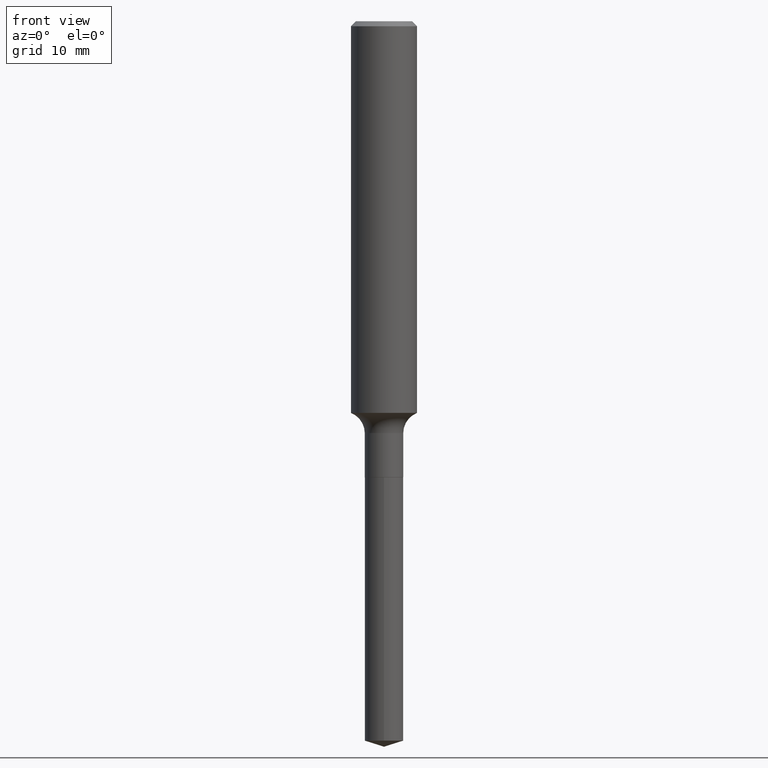
[diagram: clean part render]
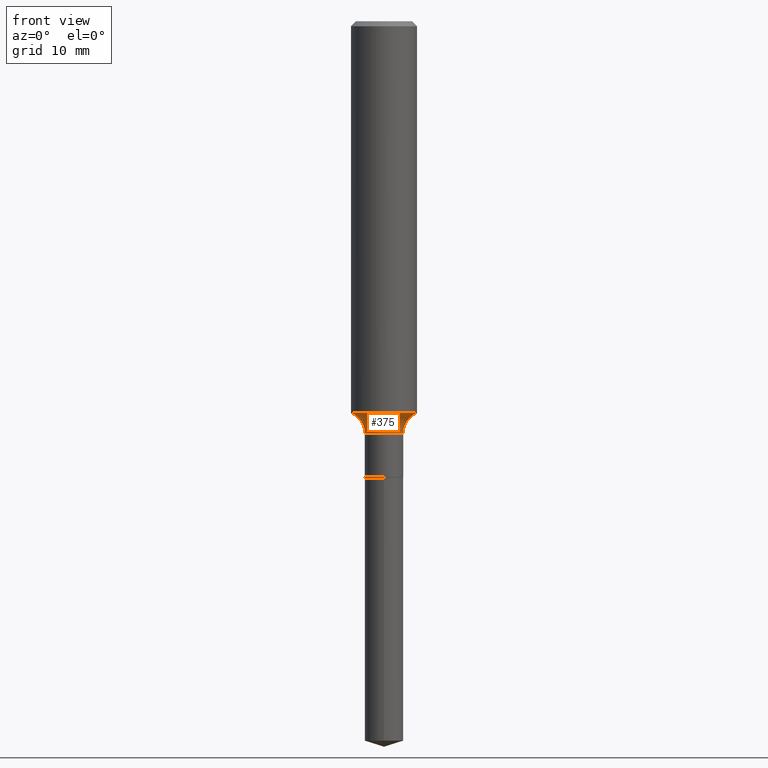
[diagram: same view with one face highlighted and labeled with its STEP entity id]
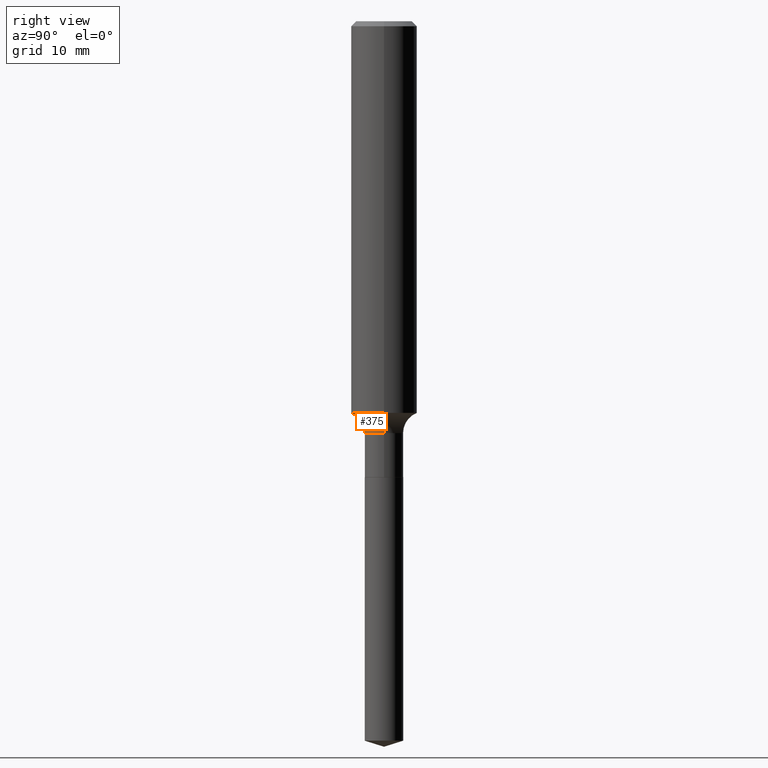
[diagram: same view with one face highlighted and labeled with its STEP entity id]
A machine part, front view. The second image highlights one B-rep face of the part: STEP entity #375.
A second angle (right view) of the same face is appended — the face is thin or edge-on in the first view.
In plain terms, the highlighted toroidal blend (fillet) surface has major radius 3.7313 mm and minor (blend) radius 1.9812 mm.
Its self-contained STEP definition (entity closure, byte-faithful):
#2 = EDGE_CURVE ( 'NONE', #52, #279, #387, .T. ) ;
#7 = ORIENTED_EDGE ( 'NONE', *, *, #2, .F. ) ;
#37 = FACE_OUTER_BOUND ( 'NONE', #129, .T. ) ;
#52 = VERTEX_POINT ( 'NONE', #269 ) ;
#101 = CARTESIAN_POINT ( 'NONE',  ( -0.1468999999999999750, -4.107195140363705355E-15, -1.475300000000000056 ) ) ;
#105 = EDGE_CURVE ( 'NONE', #397, #279, #241, .T. ) ;
#129 = EDGE_LOOP ( 'NONE', ( #196, #276, #244, #7 ) ) ;
#144 = AXIS2_PLACEMENT_3D ( 'NONE', #155, #271, #429 ) ;
#155 = CARTESIAN_POINT ( 'NONE',  ( 0.1468999999999999750, -6.176779636547406107E-15, -1.475300000000000056 ) ) ;
#158 = DIRECTION ( 'NONE',  ( 1.000000000000000000, -6.982962677686267499E-15, 0.000000000000000000 ) ) ;
#160 = VERTEX_POINT ( 'NONE', #401 ) ;
#173 = CIRCLE ( 'NONE', #388, 0.07800000000000006928 ) ;
#174 = DIRECTION ( 'NONE',  ( -2.445468806185136597E-29, 3.491481338843145583E-15, 1.000000000000000000 ) ) ;
#196 = ORIENTED_EDGE ( 'NONE', *, *, #370, .F. ) ;
#218 = CARTESIAN_POINT ( 'NONE',  ( 3.430532145968479544E-29, -4.897890719217663237E-15, -1.402811656109412830 ) ) ;
#223 = EDGE_CURVE ( 'NONE', #160, #397, #173, .T. ) ;
#241 = CIRCLE ( 'NONE', #249, 0.06889999999999998903 ) ;
#244 = ORIENTED_EDGE ( 'NONE', *, *, #105, .T. ) ;
#245 = DIRECTION ( 'NONE',  ( 7.105427357601001859E-15, 1.000000000000000000, -3.491481338843145583E-15 ) ) ;
#249 = AXIS2_PLACEMENT_3D ( 'NONE', #350, #380, #158 ) ;
#259 = DIRECTION ( 'NONE',  ( -2.445468806185136597E-29, 3.491481338843145583E-15, 1.000000000000000000 ) ) ;
#265 = CIRCLE ( 'NONE', #327, 0.1181000000000001632 ) ;
#269 = CARTESIAN_POINT ( 'NONE',  ( 0.1181000000000002603, -5.722578611452413077E-15, -1.402811656109412830 ) ) ;
#271 = DIRECTION ( 'NONE',  ( -6.982962677686266711E-15, -1.000000000000000000, 3.491481338843145583E-15 ) ) ;
#276 = ORIENTED_EDGE ( 'NONE', *, *, #223, .T. ) ;
#279 = VERTEX_POINT ( 'NONE', #366 ) ;
#305 = AXIS2_PLACEMENT_3D ( 'NONE', #404, #174, #328 ) ;
#316 = DIRECTION ( 'NONE',  ( -1.000000000000000000, 7.105427357601005014E-15, 0.000000000000000000 ) ) ;
#327 = AXIS2_PLACEMENT_3D ( 'NONE', #218, #259, #448 ) ;
#328 = DIRECTION ( 'NONE',  ( 1.000000000000000000, -6.982962677686268288E-15, 4.883557194083113462E-29 ) ) ;
#350 = CARTESIAN_POINT ( 'NONE',  ( 3.607800129764931825E-29, -5.150982419195292745E-15, -1.475300000000000056 ) ) ;
#358 = TOROIDAL_SURFACE ( 'NONE', #305, 0.1468999999999999750, 0.07800000000000006928 ) ;
#366 = CARTESIAN_POINT ( 'NONE',  ( 0.06889999999999998903, -5.632108547687876483E-15, -1.475300000000000056 ) ) ;
#370 = EDGE_CURVE ( 'NONE', #160, #52, #265, .T. ) ;
#375 = ADVANCED_FACE ( 'NONE', ( #37 ), #358, .F. ) ;
#380 = DIRECTION ( 'NONE',  ( -2.445468806185136597E-29, 3.491481338843145583E-15, 1.000000000000000000 ) ) ;
#387 = CIRCLE ( 'NONE', #144, 0.07800000000000006928 ) ;
#388 = AXIS2_PLACEMENT_3D ( 'NONE', #101, #245, #316 ) ;
#397 = VERTEX_POINT ( 'NONE', #450 ) ;
#401 = CARTESIAN_POINT ( 'NONE',  ( -0.1181000000000002603, -4.058739748284982673E-15, -1.402811656109412830 ) ) ;
#404 = CARTESIAN_POINT ( 'NONE',  ( 3.607800129764931825E-29, -5.150982419195292745E-15, -1.475300000000000056 ) ) ;
#429 = DIRECTION ( 'NONE',  ( 1.000000000000000000, -6.982962677686264344E-15, 0.000000000000000000 ) ) ;
#448 = DIRECTION ( 'NONE',  ( 1.000000000000000000, -6.982962677686270655E-15, 0.000000000000000000 ) ) ;
#450 = CARTESIAN_POINT ( 'NONE',  ( -0.06889999999999998903, -4.937245500025191811E-15, -1.475300000000000056 ) ) ;